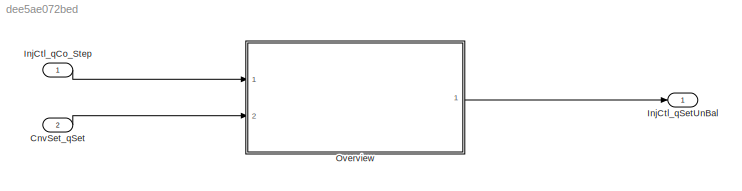
MODEL slx_dee5ae072bed
KIND model
CONFIG AbsTol = auto
CONFIG EnableMultiTasking = off
CONFIG FixedStep = 0.001
CONFIG MaxStep = auto
CONFIG MinStep = auto
CONFIG RelTol = 1e-3
CONFIG SampleTimeConstraint = Unconstrained
CONFIG Solver = FixedStepDiscrete
CONFIG SolverName = FixedStepDiscrete
CONFIG StartTime = 0.0
CONFIG StopTime = Inf
BLOCK [Inport] CnvSet_qSet
  Description = Injection quantity current path
  IconDisplay = Port number
  OutDataTypeStr = InjMass
  OutMax = 319
  OutMin = -319
  Port = 2
  PortDimensions = [1 1]
  Unit = mg/hub
BLOCK [Inport] InjCtl_qCo_Step
  IconDisplay = Port number
  OutputFunctionCall = on
BLOCK [Outport] InjCtl_qSetUnBal
  Description = Torque generating engine fuel injection quantity
  IconDisplay = Port number
  OutDataTypeStr = InjMass
  OutMax = 319
  OutMin = -319
  PortDimensions = [1 1]
  Unit = mg/hub
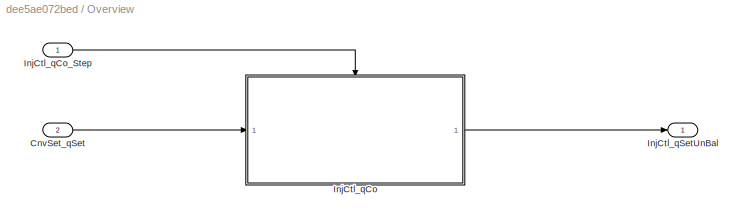
BLOCK [SubSystem] Overview
  Ports = [2, 1]
  RequestExecContextInheritance = off
BLOCK [Inport] Overview/CnvSet_qSet
  IconDisplay = Port number
  Port = 2
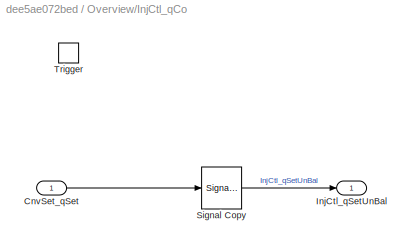
BLOCK [SubSystem] Overview/InjCtl_qCo
  Ports = [1, 1, 0, 1]
  RequestExecContextInheritance = off
BLOCK [Inport] Overview/InjCtl_qCo/CnvSet_qSet
  IconDisplay = Port number
BLOCK [Outport] Overview/InjCtl_qCo/InjCtl_qSetUnBal
  IconDisplay = Port number
BLOCK [SignalConversion] Overview/InjCtl_qCo/Signal Copy
  OverrideOpt = off
BLOCK [TriggerPort] Overview/InjCtl_qCo/Trigger
  PortDimensions = 1
  Ports = []
  StatesWhenEnabling = held
  TriggerType = function-call
  VariantControl = Variant
BLOCK [Inport] Overview/InjCtl_qCo_Step
  IconDisplay = Port number
BLOCK [Outport] Overview/InjCtl_qSetUnBal
  IconDisplay = Port number
LINE CnvSet_qSet:1 -> Overview:2
LINE InjCtl_qCo_Step:1 -> Overview:1
LINE Overview/CnvSet_qSet:1 -> Overview/InjCtl_qCo:1
LINE Overview/InjCtl_qCo/CnvSet_qSet:1 -> Overview/InjCtl_qCo/Signal Copy:1
LINE Overview/InjCtl_qCo/Signal Copy:1 -> Overview/InjCtl_qCo/InjCtl_qSetUnBal:1
LINE Overview/InjCtl_qCo:1 -> Overview/InjCtl_qSetUnBal:1
LINE Overview/InjCtl_qCo_Step:1 -> Overview/InjCtl_qCo:trigger
LINE Overview:1 -> InjCtl_qSetUnBal:1
